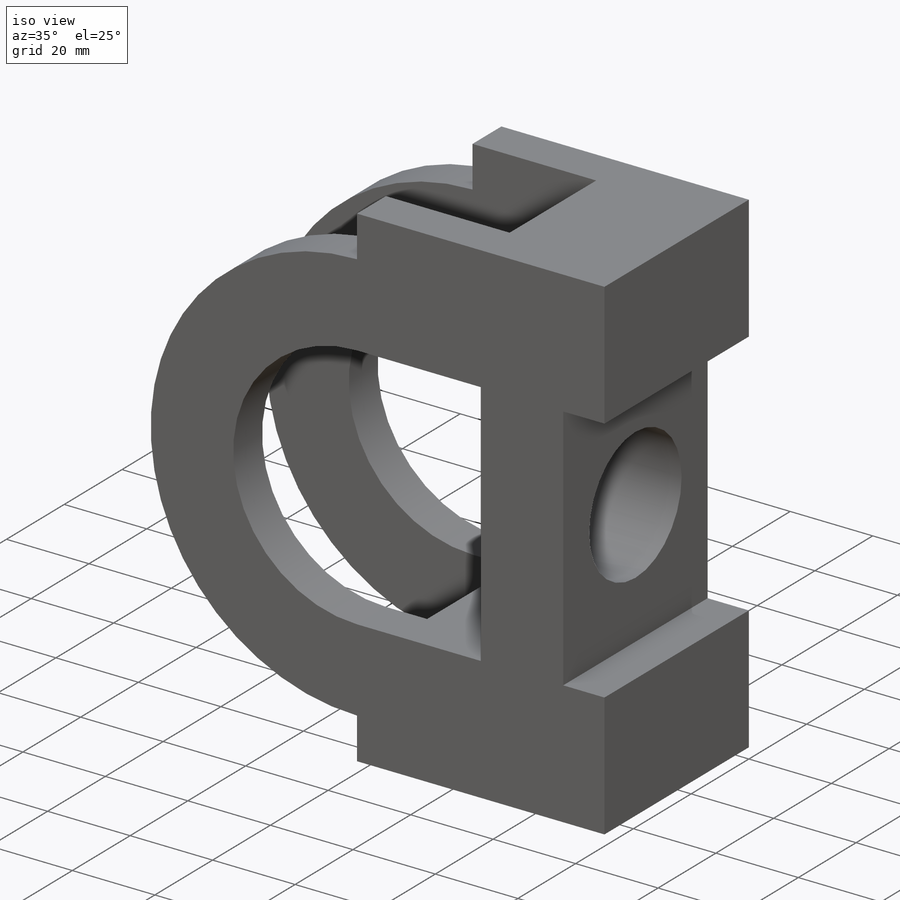
[diagram: iso view]
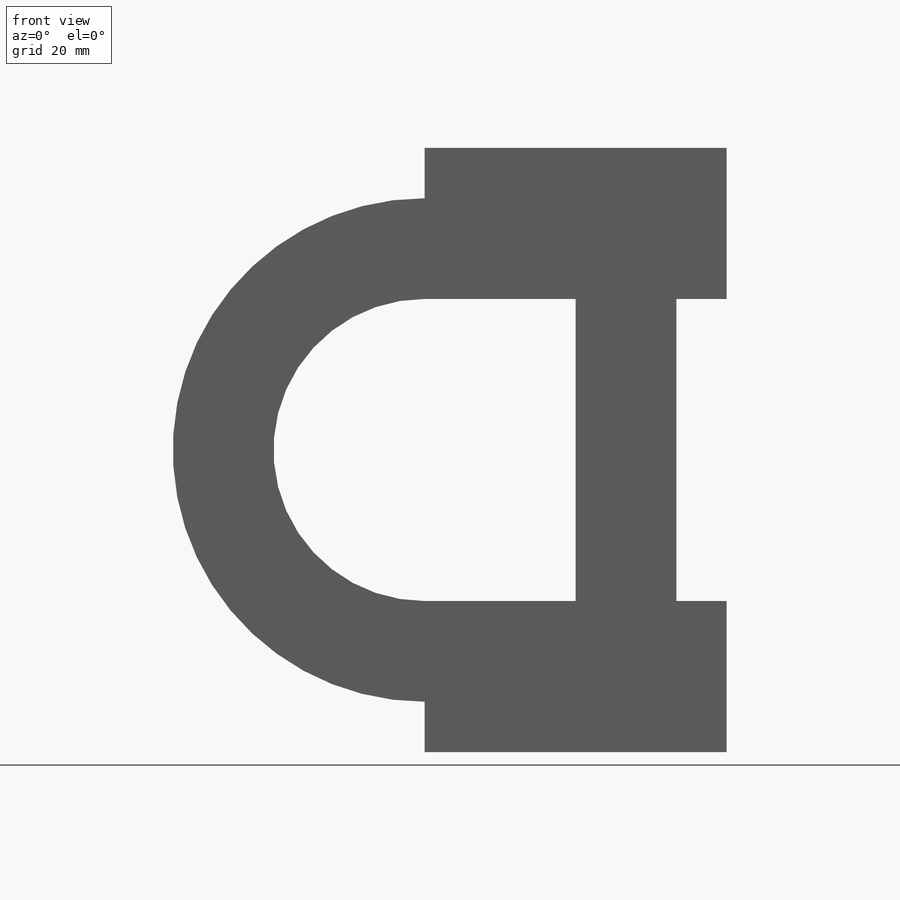
[diagram: front view]
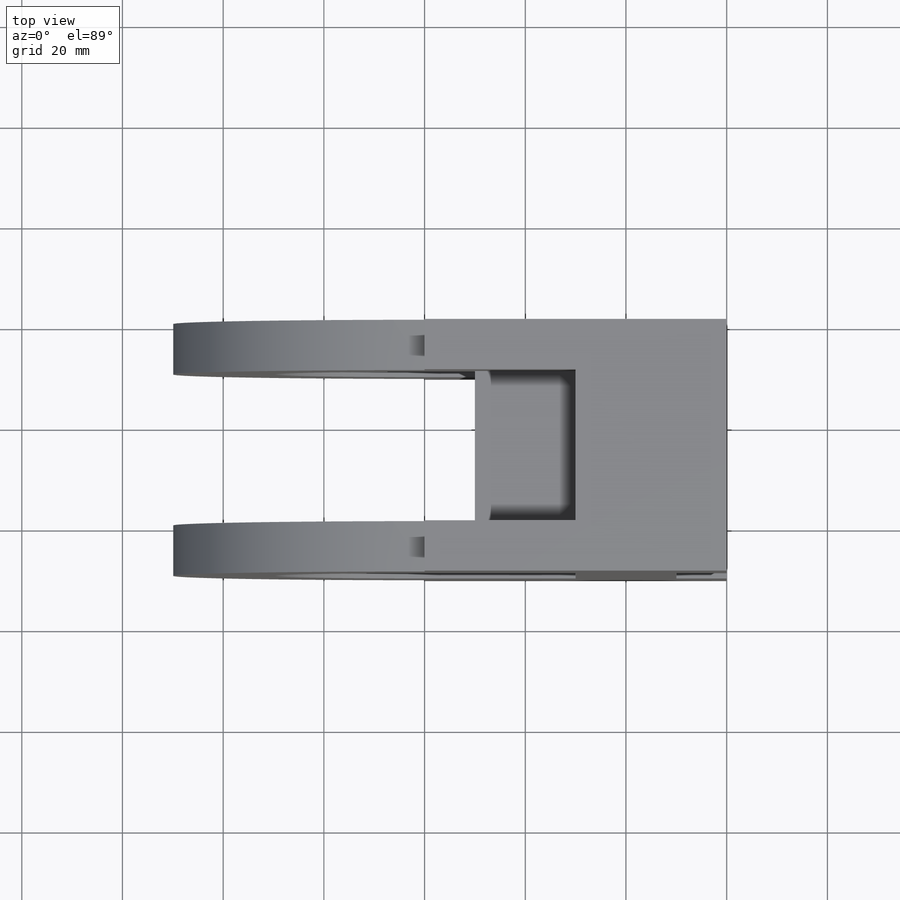
[diagram: top view]
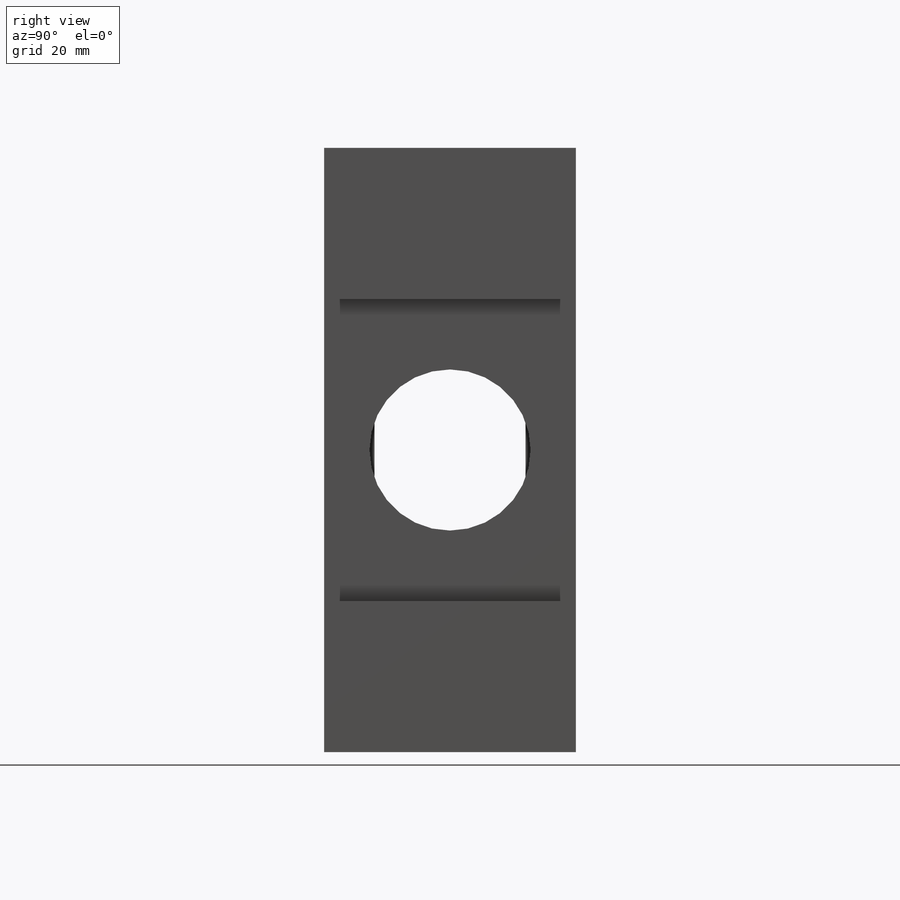
[diagram: right view]
SOLIDWORKS PART (.sldprt)
format: sldprt  version: not decoded by parser v0  size: 238,592 bytes
history: native  units: mm
features: sketch x7, cut_extrude x6, material x1, extrude x1, plane x1 (+13 scaffold rows collapsed)
feature tree (29):
  scaffold x13  (default folders/planes/origin — collapsed)
  material  "Material <not specified>"
  sketch  "Sketch1"  dims[c1.D1=50.0mm c1.D6=50.0mm c1.D7=50.0mm c1.D2=60.0mm c1.D3=120.0mm c2.D1=60.0mm c2.D4=10.0mm c2.D5=10.0mm c2.D7=120.0mm]
  extrude  "Boss-Extrude1"  Depth=50mm
  sketch  "Sketch2"  dims[D1=10.0mm D2=60.0mm D3=30.0mm D4=30.0mm]
  cut_extrude  "Cut-Extrude1"  Depth=50mm
  sketch  "Sketch3"  dims[D5=30.0mm D1=60.0mm D2=0.0mm D3=20.0mm D4=30.0mm]
  cut_extrude  "Cut-Extrude2"  Depth=50mm
  plane  "Plane1"  Offset=120mm
  sketch  "Sketch4"  dims[D1=30.0mm D2=10.0mm D3=50.0mm D4=60.0mm]
  cut_extrude  "Cut-Extrude3"  Depth=177mm
  sketch  "Sketch5"  dims[D1=32.0mm D2=30.0mm D3=25.0mm D4=25.0mm]
  cut_extrude  "Cut-Extrude5"  Depth=177mm
  sketch  "Sketch6"  dims[D1=20.0mm D2=30.0mm]
  cut_extrude  "Cut-Extrude6"  Depth=20mm
  sketch  "Sketch7"  dims[D1=30.0mm D2=20.0mm]
  cut_extrude  "Cut-Extrude7"  Depth=20mm
decode coverage: 14 of 14 modeling features carry decoded parameters
note: suppression state not decoded; provenance and decode notes live in map.json
